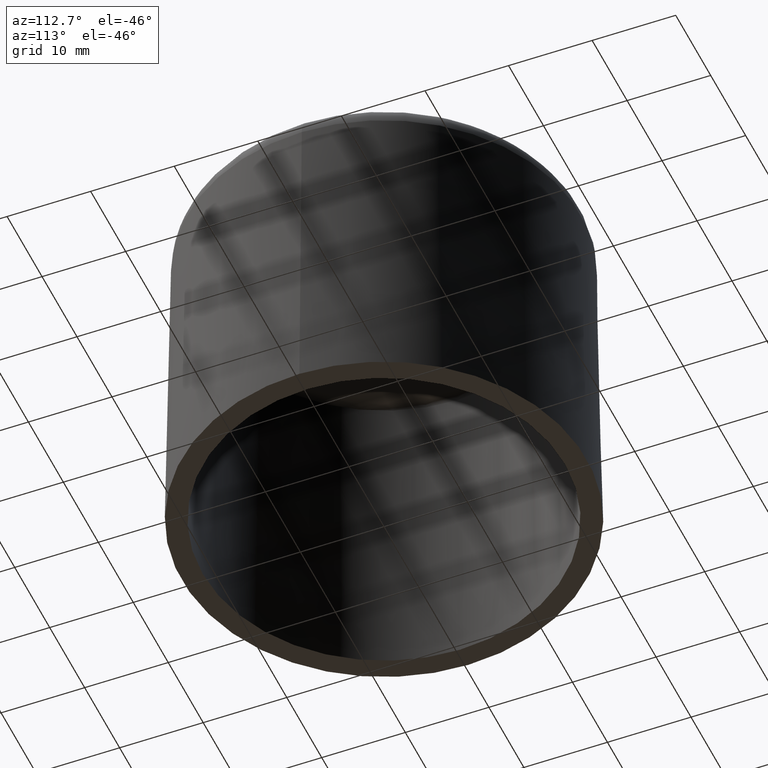
[diagram: clean part render]
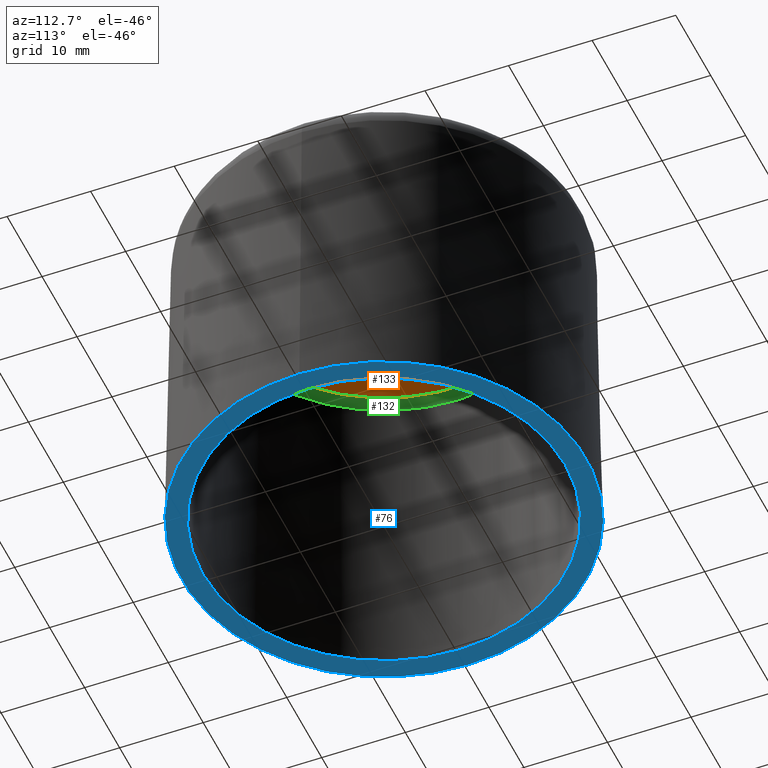
[diagram: same view with three faces highlighted in distinct colors, each labeled with its STEP entity id]
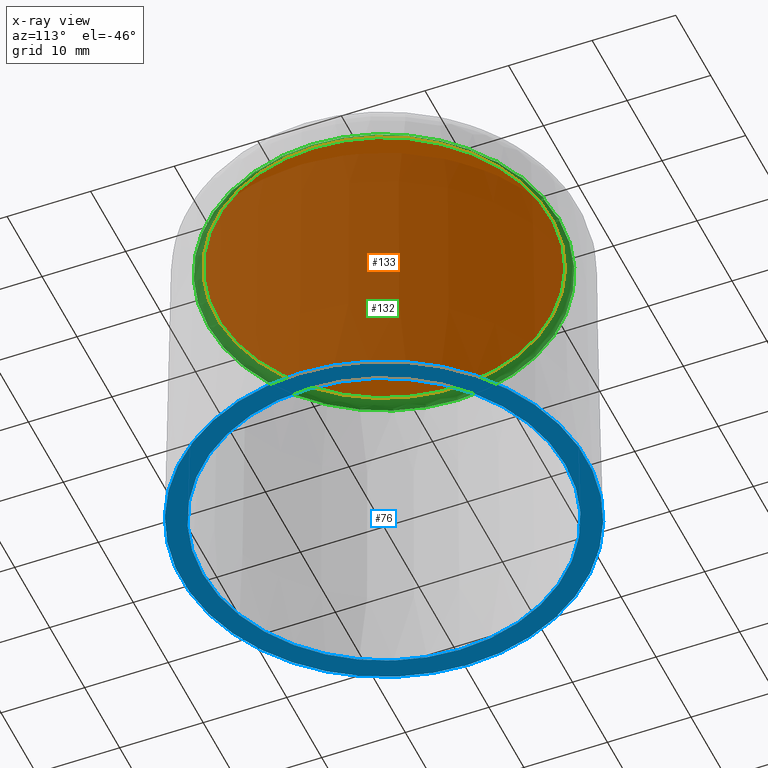
[diagram: x-ray of the same camera — body ghosted, the three highlighted faces saturated]
A machine part, auxiliary view with three faces highlighted in distinct colors.
The next image is the same camera in x-ray (body ghosted, the three faces saturated) — at least one of them is partly hidden behind the body in this view.
Their STEP definitions:

[orange] entity #133 — the highlighted planar face has unit normal (-0, 0, 1).
#133 = ADVANCED_FACE( '', ( #278 ), #279, .F. );
#278 = FACE_OUTER_BOUND( '', #443, .T. );
#279 = PLANE( '', #444 );
#443 = EDGE_LOOP( '', ( #957 ) );
#444 = AXIS2_PLACEMENT_3D( '', #958, #959, #960 );
#957 = ORIENTED_EDGE( '', *, *, #1252, .F. );
#958 = CARTESIAN_POINT( '', ( -2.44921270764475E-015, 0.000000000000000, 40.0000000000000 ) );
#959 = DIRECTION( '', ( -6.12303176911189E-017, 0.000000000000000, 1.00000000000000 ) );
#960 = DIRECTION( '', ( 1.00000000000000, 0.000000000000000, 6.12303176911189E-017 ) );
#1252 = EDGE_CURVE( '', #1540, #1540, #1541, .T. );
#1540 = VERTEX_POINT( '', #2114 );
#1541 = CIRCLE( '', #2115, 20.0182014383199 );
#2114 = CARTESIAN_POINT( '', ( 20.0182014383199, 0.000000000000000, 40.0000000000000 ) );
#2115 = AXIS2_PLACEMENT_3D( '', #2264, #2265, #2266 );
#2264 = CARTESIAN_POINT( '', ( -2.44921270764475E-015, 0.000000000000000, 40.0000000000000 ) );
#2265 = DIRECTION( '', ( -6.12303176911189E-017, 0.000000000000000, 1.00000000000000 ) );
#2266 = DIRECTION( '', ( 1.00000000000000, 0.000000000000000, 6.12303176911189E-017 ) );

[blue] entity #76 — the highlighted planar face has unit normal (-0, 0, 1).
#76 = ADVANCED_FACE( '', ( #160, #161 ), #162, .F. );
#160 = FACE_OUTER_BOUND( '', #322, .T. );
#161 = FACE_BOUND( '', #323, .T. );
#162 = PLANE( '', #324 );
#322 = EDGE_LOOP( '', ( #535 ) );
#323 = EDGE_LOOP( '', ( #536 ) );
#324 = AXIS2_PLACEMENT_3D( '', #537, #538, #539 );
#535 = ORIENTED_EDGE( '', *, *, #1140, .F. );
#536 = ORIENTED_EDGE( '', *, *, #1141, .T. );
#537 = CARTESIAN_POINT( '', ( 6.37306017241811E-031, 21.6991012985644, -1.04083408558608E-014 ) );
#538 = DIRECTION( '', ( -6.12303176911189E-017, 0.000000000000000, 1.00000000000000 ) );
#539 = DIRECTION( '', ( 1.00000000000000, 0.000000000000000, 6.12303176911189E-017 ) );
#1140 = EDGE_CURVE( '', #1367, #1367, #1368, .T. );
#1141 = EDGE_CURVE( '', #1369, #1369, #1370, .T. );
#1367 = VERTEX_POINT( '', #1772 );
#1368 = CIRCLE( '', #1773, 24.1994821186741 );
#1369 = VERTEX_POINT( '', #1774 );
#1370 = CIRCLE( '', #1775, 21.6991012985644 );
#1772 = CARTESIAN_POINT( '', ( 24.1994821186741, 0.000000000000000, 1.48174197808697E-015 ) );
#1773 = AXIS2_PLACEMENT_3D( '', #2168, #2169, #2170 );
#1774 = CARTESIAN_POINT( '', ( 21.6991012985644, 0.000000000000000, -1.94880388455988E-014 ) );
#1775 = AXIS2_PLACEMENT_3D( '', #2171, #2172, #2173 );
#2168 = CARTESIAN_POINT( '', ( 0.000000000000000, 0.000000000000000, 0.000000000000000 ) );
#2169 = DIRECTION( '', ( -6.12303176911189E-017, 0.000000000000000, 1.00000000000000 ) );
#2170 = DIRECTION( '', ( 1.00000000000000, 0.000000000000000, 6.12303176911189E-017 ) );
#2171 = CARTESIAN_POINT( '', ( 1.27461203448362E-030, 0.000000000000000, -2.08166817117217E-014 ) );
#2172 = DIRECTION( '', ( -6.12303176911189E-017, 0.000000000000000, 1.00000000000000 ) );
#2173 = DIRECTION( '', ( 1.00000000000000, 0.000000000000000, 6.12303176911189E-017 ) );

[green] entity #132 — the highlighted toroidal blend (fillet) surface has major radius 20.0182 mm and minor (blend) radius 1 mm.
#132 = ADVANCED_FACE( '', ( #275, #276 ), #277, .F. );
#275 = FACE_OUTER_BOUND( '', #440, .T. );
#276 = FACE_OUTER_BOUND( '', #441, .T. );
#277 = TOROIDAL_SURFACE( '', #442, 20.0182014383199, 1.00000000000000 );
#440 = EDGE_LOOP( '', ( #952 ) );
#441 = EDGE_LOOP( '', ( #953 ) );
#442 = AXIS2_PLACEMENT_3D( '', #954, #955, #956 );
#952 = ORIENTED_EDGE( '', *, *, #1251, .F. );
#953 = ORIENTED_EDGE( '', *, *, #1252, .T. );
#954 = CARTESIAN_POINT( '', ( -2.38798238995364E-015, 0.000000000000000, 39.0000000000000 ) );
#955 = DIRECTION( '', ( -6.12303176911189E-017, 0.000000000000000, 1.00000000000000 ) );
#956 = DIRECTION( '', ( 1.00000000000000, 0.000000000000000, 6.12303176911189E-017 ) );
#1251 = EDGE_CURVE( '', #1538, #1538, #1539, .T. );
#1252 = EDGE_CURVE( '', #1540, #1540, #1541, .T. );
#1538 = VERTEX_POINT( '', #2112 );
#1539 = CIRCLE( '', #2113, 21.0180491334763 );
#1540 = VERTEX_POINT( '', #2114 );
#1541 = CIRCLE( '', #2115, 20.0182014383199 );
#2112 = CARTESIAN_POINT( '', ( 21.0180491334763, 0.000000000000000, 39.0174524064373 ) );
#2113 = AXIS2_PLACEMENT_3D( '', #2261, #2262, #2263 );
#2114 = CARTESIAN_POINT( '', ( 20.0182014383199, 0.000000000000000, 40.0000000000000 ) );
#2115 = AXIS2_PLACEMENT_3D( '', #2264, #2265, #2266 );
#2261 = CARTESIAN_POINT( '', ( -2.38905100634427E-015, 0.000000000000000, 39.0174524064373 ) );
#2262 = DIRECTION( '', ( -6.12303176911189E-017, 0.000000000000000, 1.00000000000000 ) );
#2263 = DIRECTION( '', ( 1.00000000000000, 0.000000000000000, 6.12303176911189E-017 ) );
#2264 = CARTESIAN_POINT( '', ( -2.44921270764475E-015, 0.000000000000000, 40.0000000000000 ) );
#2265 = DIRECTION( '', ( -6.12303176911189E-017, 0.000000000000000, 1.00000000000000 ) );
#2266 = DIRECTION( '', ( 1.00000000000000, 0.000000000000000, 6.12303176911189E-017 ) );